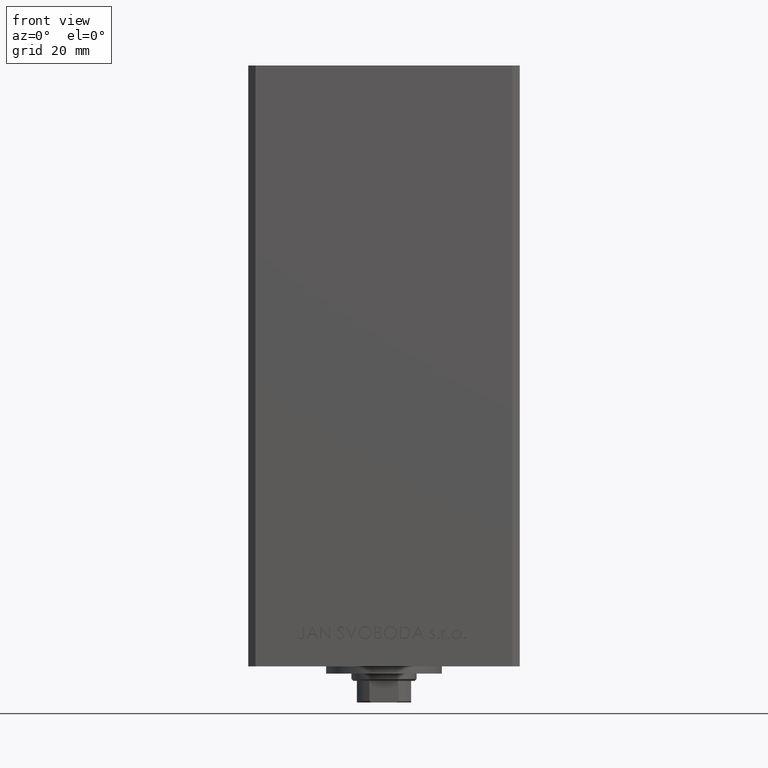
[diagram: clean part render]
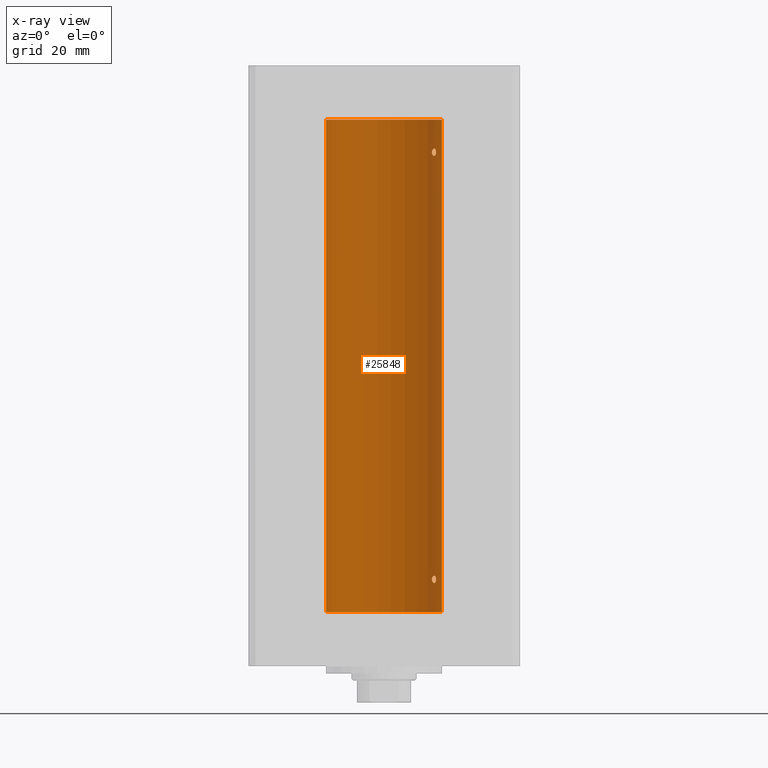
[diagram: x-ray — body ghosted, one internal face saturated and labeled with its STEP entity id]
A machine part, front view, then the same camera in x-ray: the body is ghosted and one INTERNAL B-rep face — a face not visible from any outside direction — is saturated and labeled: STEP entity #25848.
In plain terms, the highlighted cylindrical surface (partial cylindrical patch) has radius 16 mm, axis along (-0, -0, -1).
Its self-contained STEP definition (entity closure, byte-faithful):
#564 = CARTESIAN_POINT ( 'NONE',  ( 16.00000000000000000, 1.959434878635765131E-15, 136.0000000000000000 ) ) ;
#1618 = CARTESIAN_POINT ( 'NONE',  ( 14.31615587311060445, 7.145052533203036127, 126.4626987052745193 ) ) ;
#2035 = CARTESIAN_POINT ( 'NONE',  ( 13.22875655532295625, 9.000000000000000000, 9.142659515501296852 ) ) ;
#2592 = CARTESIAN_POINT ( 'NONE',  ( 14.38749456993829767, 7.000000000000029310, 126.9292911095187577 ) ) ;
#2633 = CARTESIAN_POINT ( 'NONE',  ( 0.000000000000000000, 0.000000000000000000, 0.000000000000000000 ) ) ;
#2760 = CARTESIAN_POINT ( 'NONE',  ( 13.32443414199768839, 8.857985377928104143, 8.468605830316136007 ) ) ;
#3278 = CARTESIAN_POINT ( 'NONE',  ( 16.00000000000000000, 1.959434878635765131E-15, 0.000000000000000000 ) ) ;
#3893 = CARTESIAN_POINT ( 'NONE',  ( 13.70635209652260400, 8.259251269739737111, 127.9961002086728570 ) ) ;
#4394 = ORIENTED_EDGE ( 'NONE', *, *, #27513, .F. ) ;
#4871 = VERTEX_POINT ( 'NONE', #11619 ) ;
#4957 = B_SPLINE_CURVE_WITH_KNOTS ( 'NONE', 3,
 ( #42507, #16056, #31544, #24060, #8335, #23567, #46716, #42996, #20315, #24310, #43247, #20565, #31296, #35778, #1618, #42262, #8094, #23318, #2592, #9568 ),
 .UNSPECIFIED., .F., .F.,
 ( 4, 2, 2, 2, 2, 2, 2, 2, 2, 4 ),
 ( 0.000000000000000000, 0.0004221896201403046197, 0.0008443792402806092395, 0.001266568860420913805, 0.001688758480561218479, 0.002110948100701523153, 0.002533137720841827610, 0.002955327340982132501, 0.003166422151052284729, 0.003377516961122436958 ),
 .UNSPECIFIED. ) ;
#5761 = CARTESIAN_POINT ( 'NONE',  ( 13.98853479819183043, 7.771757428685174496, 10.00365939203466681 ) ) ;
#6303 = ORIENTED_EDGE ( 'NONE', *, *, #42659, .T. ) ;
#7135 = CARTESIAN_POINT ( 'NONE',  ( 13.22875655532295625, 8.999999999999994671, 127.1426595155012933 ) ) ;
#7215 = CARTESIAN_POINT ( 'NONE',  ( 13.49787029139620920, 8.591848682074017418, 8.183814587142569152 ) ) ;
#7635 = CARTESIAN_POINT ( 'NONE',  ( 13.25022586032983973, 8.968609469449800642, 127.2832896389628985 ) ) ;
#7709 = CARTESIAN_POINT ( 'NONE',  ( 13.25010819131475159, 8.968783812673564171, 8.717198662283735189 ) ) ;
#7957 = CARTESIAN_POINT ( 'NONE',  ( 14.17516445690067428, 7.421373518623910037, 8.173695665549439937 ) ) ;
#8094 = CARTESIAN_POINT ( 'NONE',  ( 14.36932461189096522, 7.037242368448795915, 126.7207139776694333 ) ) ;
#8204 = CARTESIAN_POINT ( 'NONE',  ( 14.38374727663542707, 7.007716049903074840, 8.857607929436484895 ) ) ;
#8335 = CARTESIAN_POINT ( 'NONE',  ( 13.37714181818049752, 8.778635597591465611, 126.3595547667463137 ) ) ;
#8445 = EDGE_CURVE ( 'NONE', #4871, #33184, #4957, .T. ) ;
#8614 = ORIENTED_EDGE ( 'NONE', *, *, #14764, .F. ) ;
#9501 = CARTESIAN_POINT ( 'NONE',  ( 14.27601081693604712, 7.225489892961965310, 9.646446674983275571 ) ) ;
#9568 = CARTESIAN_POINT ( 'NONE',  ( 14.38749456993875775, 6.999999999998772537, 126.9999999999994742 ) ) ;
#10845 = EDGE_CURVE ( 'NONE', #31931, #47880, #46750, .T. ) ;
#11009 = CYLINDRICAL_SURFACE ( 'NONE', #39964, 16.00000000000000000 ) ;
#11140 = CARTESIAN_POINT ( 'NONE',  ( 14.38749456993875775, 6.999999999998772537, 126.9999999999994742 ) ) ;
#11619 = CARTESIAN_POINT ( 'NONE',  ( 13.22875655532295802, 8.999999999999996447, 127.0000000000000000 ) ) ;
#11715 = B_SPLINE_CURVE_WITH_KNOTS ( 'NONE', 3,
 ( #11140, #41801, #22371, #22863, #45772, #15354, #22622, #3893, #19112, #45525, #26616, #7635, #7135, #42291 ),
 .UNSPECIFIED., .F., .F.,
 ( 4, 2, 2, 2, 2, 2, 4 ),
 ( 0.003377516961122436958, 0.003798778705083865476, 0.004220040449045293560, 0.005062563936968100288, 0.005905087424890907016, 0.006326349168852314284, 0.006747610912813719816 ),
 .UNSPECIFIED. ) ;
#12196 = CARTESIAN_POINT ( 'NONE',  ( 14.38749456993828879, 7.000000000000026645, 8.929291109518763037 ) ) ;
#12685 = CARTESIAN_POINT ( 'NONE',  ( 14.38749456993875953, 6.999999999998769873, 8.999999999999467093 ) ) ;
#12753 = CARTESIAN_POINT ( 'NONE',  ( 13.37722806521492025, 8.778496895713756132, 9.640492215702138878 ) ) ;
#13719 = VECTOR ( 'NONE', #41709, 1000.000000000000000 ) ;
#13887 = VERTEX_POINT ( 'NONE', #40738 ) ;
#14079 = DIRECTION ( 'NONE',  ( -0.000000000000000000, 0.000000000000000000, 1.000000000000000000 ) ) ;
#14204 = CARTESIAN_POINT ( 'NONE',  ( 13.56526576050683452, 8.485384079562178883, 8.116990538131117816 ) ) ;
#14430 = B_SPLINE_CURVE_WITH_KNOTS ( 'NONE', 3,
 ( #16987, #32214, #47387, #27742, #9501, #24728, #5761, #31721, #42929, #12753, #32461, #36199, #2035, #46651 ),
 .UNSPECIFIED., .F., .F.,
 ( 4, 2, 2, 2, 2, 2, 4 ),
 ( 0.003377516961122438259, 0.003798778705083848996, 0.004220040449045259733, 0.005062563936968083808, 0.005905087424890908751, 0.006326349168852319488, 0.006747610912813730225 ),
 .UNSPECIFIED. ) ;
#14447 = CARTESIAN_POINT ( 'NONE',  ( 13.70633586603034715, 8.255576010093811590, 8.025328610501505366 ) ) ;
#14695 = CARTESIAN_POINT ( 'NONE',  ( 13.98799506618804855, 7.768796316246572964, 8.018907818619863903 ) ) ;
#14764 = EDGE_CURVE ( 'NONE', #33184, #4871, #11715, .T. ) ;
#15263 = LINE ( 'NONE', #564, #13719 ) ;
#15354 = CARTESIAN_POINT ( 'NONE',  ( 14.12440581436493048, 7.519967855344577679, 127.9168456675479888 ) ) ;
#16056 = CARTESIAN_POINT ( 'NONE',  ( 13.22875655532295447, 8.999999999999998224, 126.8570262609357826 ) ) ;
#16987 = CARTESIAN_POINT ( 'NONE',  ( 14.38749456993875953, 6.999999999998769873, 8.999999999999467093 ) ) ;
#17206 = LINE ( 'NONE', #28449, #19791 ) ;
#17403 = ORIENTED_EDGE ( 'NONE', *, *, #22647, .F. ) ;
#17703 = DIRECTION ( 'NONE',  ( -0.000000000000000000, -0.000000000000000000, -1.000000000000000000 ) ) ;
#18534 = CARTESIAN_POINT ( 'NONE',  ( 13.22875655532295447, 8.999999999999998224, 8.999999999999994671 ) ) ;
#18697 = CARTESIAN_POINT ( 'NONE',  ( 0.000000000000000000, 0.000000000000000000, 136.0000000000000000 ) ) ;
#19112 = CARTESIAN_POINT ( 'NONE',  ( 13.55739033881264888, 8.499771822136688471, 127.9029833364133140 ) ) ;
#19791 = VECTOR ( 'NONE', #17703, 1000.000000000000000 ) ;
#20177 = CARTESIAN_POINT ( 'NONE',  ( 14.35867515080208356, 7.058999333127636611, 8.654421198538130966 ) ) ;
#20315 = CARTESIAN_POINT ( 'NONE',  ( 13.77746685470184218, 8.136441676695669756, 126.0017131429554667 ) ) ;
#20565 = CARTESIAN_POINT ( 'NONE',  ( 14.11701305531884465, 7.531808851198022126, 126.1073667830906686 ) ) ;
#21159 = CARTESIAN_POINT ( 'NONE',  ( -16.00000000000000000, 0.000000000000000000, 136.0000000000000000 ) ) ;
#21995 = CARTESIAN_POINT ( 'NONE',  ( 0.000000000000000000, 0.000000000000000000, 136.0000000000000000 ) ) ;
#22178 = EDGE_CURVE ( 'NONE', #28816, #13887, #46321, .T. ) ;
#22202 = CARTESIAN_POINT ( 'NONE',  ( 13.92009581174526822, 7.889943515799717311, 7.998460909213807035 ) ) ;
#22240 = FACE_BOUND ( 'NONE', #31367, .T. ) ;
#22371 = CARTESIAN_POINT ( 'NONE',  ( 14.37260515874679001, 7.030802976542522842, 127.2824317985811149 ) ) ;
#22622 = CARTESIAN_POINT ( 'NONE',  ( 13.98853479819183043, 7.771757428685177160, 128.0036593920347059 ) ) ;
#22647 = EDGE_CURVE ( 'NONE', #24902, #37420, #23138, .T. ) ;
#22730 = DIRECTION ( 'NONE',  ( -1.000000000000000000, 0.000000000000000000, 0.000000000000000000 ) ) ;
#22863 = CARTESIAN_POINT ( 'NONE',  ( 14.31678893103185679, 7.143775209822727845, 127.5347800480706724 ) ) ;
#22968 = FACE_BOUND ( 'NONE', #31711, .T. ) ;
#23138 = B_SPLINE_CURVE_WITH_KNOTS ( 'NONE', 3,
 ( #41876, #25954, #7709, #2760, #48349, #7215, #14204, #14447, #44869, #22202, #14695, #29932, #7957, #34655, #38626, #20177, #46335, #8204, #12196, #12685 ),
 .UNSPECIFIED., .F., .F.,
 ( 4, 2, 2, 2, 2, 2, 2, 2, 2, 4 ),
 ( 0.000000000000000000, 0.0004221896201403055413, 0.0008443792402806110826, 0.001266568860420916624, 0.001688758480561222165, 0.002110948100701527490, 0.002533137720841833248, 0.002955327340982138572, 0.003166422151052288633, 0.003377516961122438259 ),
 .UNSPECIFIED. ) ;
#23268 = CARTESIAN_POINT ( 'NONE',  ( 14.38749456993875953, 6.999999999998769873, 8.999999999999467093 ) ) ;
#23318 = CARTESIAN_POINT ( 'NONE',  ( 14.38374727663543062, 7.007716049903079281, 126.8576079294365400 ) ) ;
#23567 = CARTESIAN_POINT ( 'NONE',  ( 13.49787029139620920, 8.591848682074020971, 126.1838145871425922 ) ) ;
#24060 = CARTESIAN_POINT ( 'NONE',  ( 13.32443414199768306, 8.857985377928109472, 126.4686058303161360 ) ) ;
#24310 = CARTESIAN_POINT ( 'NONE',  ( 13.92009581174527000, 7.889943515799715534, 125.9984609092137617 ) ) ;
#24710 = CARTESIAN_POINT ( 'NONE',  ( 14.38749456993875775, 6.999999999998772537, 126.9999999999994742 ) ) ;
#24728 = CARTESIAN_POINT ( 'NONE',  ( 14.12440581436493225, 7.519967855344579455, 9.916845667547992349 ) ) ;
#24852 = AXIS2_PLACEMENT_3D ( 'NONE', #2633, #14079, #40271 ) ;
#24902 = VERTEX_POINT ( 'NONE', #18534 ) ;
#25643 = ORIENTED_EDGE ( 'NONE', *, *, #37103, .F. ) ;
#25848 = ADVANCED_FACE ( 'NONE', ( #41667, #22240, #22968 ), #11009, .F. ) ;
#25954 = CARTESIAN_POINT ( 'NONE',  ( 13.22875655532296157, 9.000000000000000000, 8.857026260935734641 ) ) ;
#26235 = DIRECTION ( 'NONE',  ( -0.000000000000000000, -0.000000000000000000, -1.000000000000000000 ) ) ;
#26616 = CARTESIAN_POINT ( 'NONE',  ( 13.32447566991143795, 8.857922402414491359, 127.5314381199038678 ) ) ;
#27513 = EDGE_CURVE ( 'NONE', #31931, #28816, #15263, .T. ) ;
#27742 = CARTESIAN_POINT ( 'NONE',  ( 14.31678893103186390, 7.143775209822729622, 9.534780048070684799 ) ) ;
#28449 = CARTESIAN_POINT ( 'NONE',  ( -16.00000000000000000, 0.000000000000000000, 136.0000000000000000 ) ) ;
#28816 = VERTEX_POINT ( 'NONE', #3278 ) ;
#29932 = CARTESIAN_POINT ( 'NONE',  ( 14.11701305531884287, 7.531808851198022126, 8.107366783090686368 ) ) ;
#30843 = AXIS2_PLACEMENT_3D ( 'NONE', #18697, #33918, #34161 ) ;
#31296 = CARTESIAN_POINT ( 'NONE',  ( 14.17516445690067606, 7.421373518623913590, 126.1736956655494453 ) ) ;
#31367 = EDGE_LOOP ( 'NONE', ( #32460, #8614 ) ) ;
#31544 = CARTESIAN_POINT ( 'NONE',  ( 13.25010819131476048, 8.968783812673565947, 126.7171986622837636 ) ) ;
#31711 = EDGE_LOOP ( 'NONE', ( #17403, #25643 ) ) ;
#31721 = CARTESIAN_POINT ( 'NONE',  ( 13.70635209652260222, 8.259251269739738888, 9.996100208672867637 ) ) ;
#31931 = VERTEX_POINT ( 'NONE', #42492 ) ;
#32214 = CARTESIAN_POINT ( 'NONE',  ( 14.38749456993835807, 6.999999999999894307, 9.141106977037484427 ) ) ;
#32460 = ORIENTED_EDGE ( 'NONE', *, *, #8445, .F. ) ;
#32461 = CARTESIAN_POINT ( 'NONE',  ( 13.32447566991143439, 8.857922402414480700, 9.531438119903825168 ) ) ;
#33184 = VERTEX_POINT ( 'NONE', #24710 ) ;
#33605 = ORIENTED_EDGE ( 'NONE', *, *, #10845, .T. ) ;
#33918 = DIRECTION ( 'NONE',  ( -0.000000000000000000, 0.000000000000000000, 1.000000000000000000 ) ) ;
#34161 = DIRECTION ( 'NONE',  ( 1.000000000000000000, 0.000000000000000000, 0.000000000000000000 ) ) ;
#34655 = CARTESIAN_POINT ( 'NONE',  ( 14.27574973237574696, 7.225997637813494023, 8.353078210746339494 ) ) ;
#35778 = CARTESIAN_POINT ( 'NONE',  ( 14.27574973237575229, 7.225997637813494912, 126.3530782107463466 ) ) ;
#36199 = CARTESIAN_POINT ( 'NONE',  ( 13.25022586032984329, 8.968609469449802418, 9.283289638962903823 ) ) ;
#37103 = EDGE_CURVE ( 'NONE', #37420, #24902, #14430, .T. ) ;
#37420 = VERTEX_POINT ( 'NONE', #23268 ) ;
#38023 = EDGE_LOOP ( 'NONE', ( #4394, #33605, #6303, #38242 ) ) ;
#38242 = ORIENTED_EDGE ( 'NONE', *, *, #22178, .F. ) ;
#38626 = CARTESIAN_POINT ( 'NONE',  ( 14.31615587311060445, 7.145052533203043232, 8.462698705274526390 ) ) ;
#39964 = AXIS2_PLACEMENT_3D ( 'NONE', #21995, #26235, #22730 ) ;
#40271 = DIRECTION ( 'NONE',  ( 1.000000000000000000, 0.000000000000000000, 0.000000000000000000 ) ) ;
#40738 = CARTESIAN_POINT ( 'NONE',  ( -16.00000000000000000, 0.000000000000000000, 0.000000000000000000 ) ) ;
#41667 = FACE_OUTER_BOUND ( 'NONE', #38023, .T. ) ;
#41709 = DIRECTION ( 'NONE',  ( -0.000000000000000000, -0.000000000000000000, -1.000000000000000000 ) ) ;
#41801 = CARTESIAN_POINT ( 'NONE',  ( 14.38749456993835807, 6.999999999999901412, 127.1411069770375093 ) ) ;
#41876 = CARTESIAN_POINT ( 'NONE',  ( 13.22875655532295447, 8.999999999999998224, 8.999999999999994671 ) ) ;
#42262 = CARTESIAN_POINT ( 'NONE',  ( 14.35867515080208001, 7.058999333127632170, 126.6544211985381452 ) ) ;
#42291 = CARTESIAN_POINT ( 'NONE',  ( 13.22875655532295802, 8.999999999999996447, 127.0000000000000000 ) ) ;
#42492 = CARTESIAN_POINT ( 'NONE',  ( 16.00000000000000000, 1.959434878635765131E-15, 136.0000000000000000 ) ) ;
#42507 = CARTESIAN_POINT ( 'NONE',  ( 13.22875655532295802, 8.999999999999996447, 127.0000000000000000 ) ) ;
#42659 = EDGE_CURVE ( 'NONE', #47880, #13887, #17206, .T. ) ;
#42929 = CARTESIAN_POINT ( 'NONE',  ( 13.55739033881265065, 8.499771822136686694, 9.902983336413296200 ) ) ;
#42996 = CARTESIAN_POINT ( 'NONE',  ( 13.70633586603035958, 8.255576010093799155, 126.0253286105015320 ) ) ;
#43247 = CARTESIAN_POINT ( 'NONE',  ( 13.98799506618804855, 7.768796316246572964, 126.0189078186199083 ) ) ;
#44869 = CARTESIAN_POINT ( 'NONE',  ( 13.77746685470184040, 8.136441676695669756, 8.001713142955473757 ) ) ;
#45525 = CARTESIAN_POINT ( 'NONE',  ( 13.37722806521492913, 8.778496895713761461, 127.6404922157021673 ) ) ;
#45772 = CARTESIAN_POINT ( 'NONE',  ( 14.27601081693604357, 7.225489892961959981, 127.6464466749832383 ) ) ;
#46321 = CIRCLE ( 'NONE', #24852, 16.00000000000000000 ) ;
#46335 = CARTESIAN_POINT ( 'NONE',  ( 14.36932461189096877, 7.037242368448794139, 8.720713977669424466 ) ) ;
#46651 = CARTESIAN_POINT ( 'NONE',  ( 13.22875655532295447, 8.999999999999998224, 8.999999999999994671 ) ) ;
#46716 = CARTESIAN_POINT ( 'NONE',  ( 13.56526576050684341, 8.485384079562173554, 126.1169905381311054 ) ) ;
#46750 = CIRCLE ( 'NONE', #30843, 16.00000000000000000 ) ;
#47387 = CARTESIAN_POINT ( 'NONE',  ( 14.37260515874679534, 7.030802976542521954, 9.282431798581109561 ) ) ;
#47880 = VERTEX_POINT ( 'NONE', #21159 ) ;
#48349 = CARTESIAN_POINT ( 'NONE',  ( 13.37714181818049575, 8.778635597591465611, 8.359554766746297716 ) ) ;